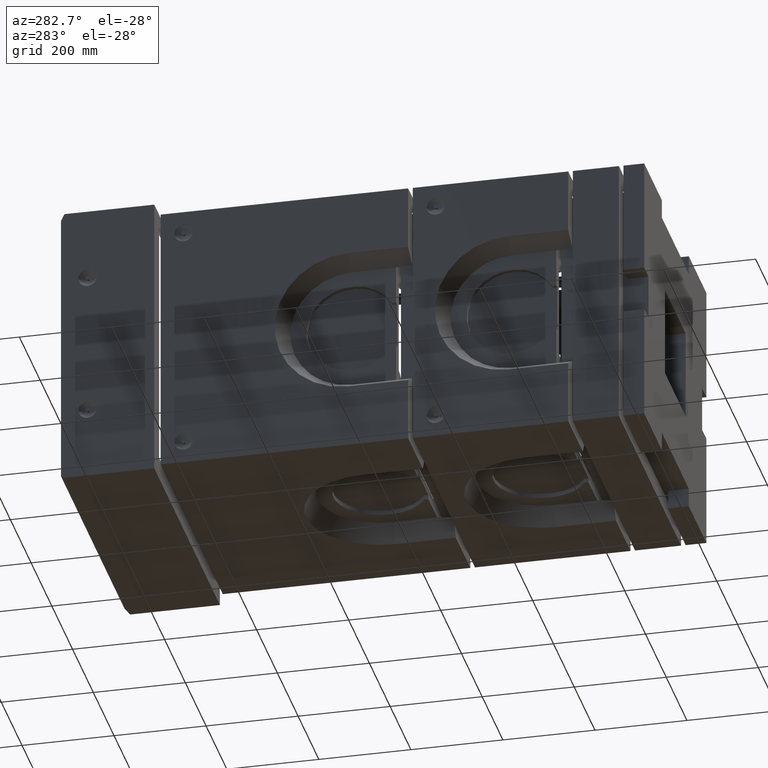
[diagram: clean part render]
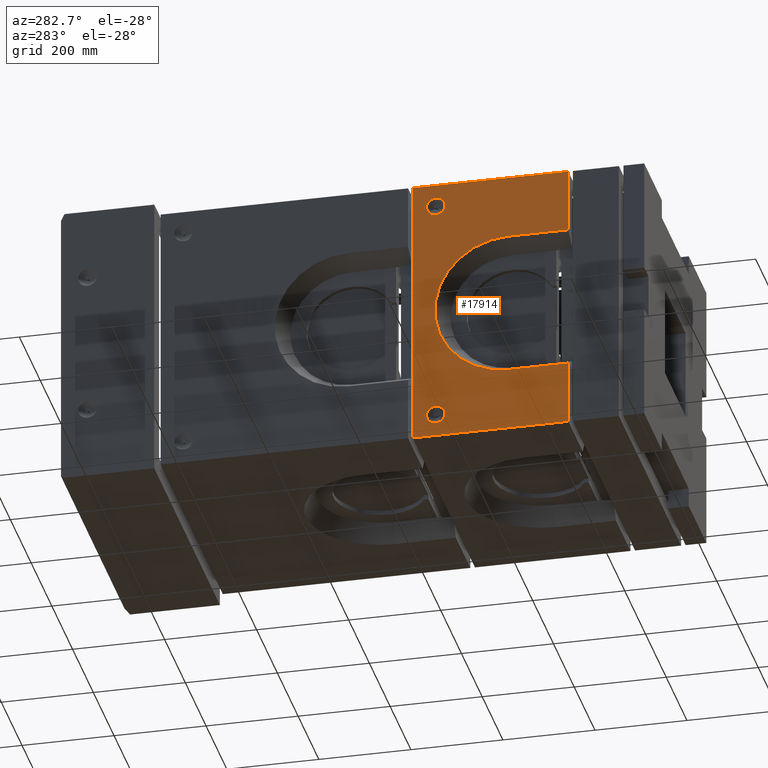
[diagram: same view with one face highlighted and labeled with its STEP entity id]
A machine part, auxiliary view. The second image highlights one B-rep face of the part: STEP entity #17914.
In plain terms, the highlighted planar face has unit normal (1, 0, 0).
Its self-contained STEP definition (entity closure, byte-faithful):
#1920 = VECTOR ( 'NONE', #21791, 1000.000000000000000 ) ;
#2865 = ORIENTED_EDGE ( 'NONE', *, *, #33384, .T. ) ;
#3267 = CARTESIAN_POINT ( 'NONE',  ( -300.0000000000000000, 502.9999999999995453, 300.0000000000000568 ) ) ;
#3295 = LINE ( 'NONE', #33744, #32811 ) ;
#5103 = DIRECTION ( 'NONE',  ( -0.0000000000000000000, -1.000000000000000000, 0.0000000000000000000 ) ) ;
#5372 = ORIENTED_EDGE ( 'NONE', *, *, #9721, .T. ) ;
#5799 = VERTEX_POINT ( 'NONE', #20026 ) ;
#5902 = EDGE_LOOP ( 'NONE', ( #17277 ) ) ;
#6622 = DIRECTION ( 'NONE',  ( 0.0000000000000000000, 0.0000000000000000000, 1.000000000000000000 ) ) ;
#6818 = VECTOR ( 'NONE', #27675, 1000.000000000000000 ) ;
#7474 = CIRCLE ( 'NONE', #26003, 20.00000000000001776 ) ;
#8334 = CIRCLE ( 'NONE', #9661, 159.9999999999999432 ) ;
#8595 = VERTEX_POINT ( 'NONE', #25867 ) ;
#8628 = EDGE_CURVE ( 'NONE', #5799, #28239, #13358, .T. ) ;
#9343 = VERTEX_POINT ( 'NONE', #30637 ) ;
#9394 = DIRECTION ( 'NONE',  ( 1.000000000000000000, 0.0000000000000000000, 0.0000000000000000000 ) ) ;
#9661 = AXIS2_PLACEMENT_3D ( 'NONE', #32703, #11723, #6622 ) ;
#9721 = EDGE_CURVE ( 'NONE', #5799, #28136, #14447, .T. ) ;
#9977 = CARTESIAN_POINT ( 'NONE',  ( -300.0000000000000000, 452.9999999999995453, -250.0000000000000000 ) ) ;
#10012 = DIRECTION ( 'NONE',  ( -0.0000000000000000000, -0.0000000000000000000, 1.000000000000000000 ) ) ;
#10184 = EDGE_CURVE ( 'NONE', #8595, #28136, #33393, .T. ) ;
#10448 = EDGE_LOOP ( 'NONE', ( #10464, #27659, #5372, #31668, #33625, #24411, #2865, #23178 ) ) ;
#10464 = ORIENTED_EDGE ( 'NONE', *, *, #28466, .F. ) ;
#10573 = DIRECTION ( 'NONE',  ( -0.0000000000000000000, -0.0000000000000000000, 1.000000000000000000 ) ) ;
#10583 = FACE_OUTER_BOUND ( 'NONE', #10448, .T. ) ;
#11019 = VERTEX_POINT ( 'NONE', #29344 ) ;
#11536 = CARTESIAN_POINT ( 'NONE',  ( -300.0000000000000000, 164.9999999999996021, 300.0000000000000568 ) ) ;
#11723 = DIRECTION ( 'NONE',  ( -1.000000000000000000, 0.0000000000000000000, 0.0000000000000000000 ) ) ;
#11861 = CARTESIAN_POINT ( 'NONE',  ( -300.0000000000000000, 294.9999999999996021, -159.9999999999999147 ) ) ;
#13358 = LINE ( 'NONE', #23228, #32252 ) ;
#13391 = AXIS2_PLACEMENT_3D ( 'NONE', #22096, #9394, #22543 ) ;
#13582 = AXIS2_PLACEMENT_3D ( 'NONE', #9977, #17725, #25758 ) ;
#14027 = CARTESIAN_POINT ( 'NONE',  ( -300.0000000000000000, 294.9999999999996021, -159.9999999999999147 ) ) ;
#14079 = DIRECTION ( 'NONE',  ( -0.0000000000000000000, -1.000000000000000000, 0.0000000000000000000 ) ) ;
#14447 = LINE ( 'NONE', #25438, #32961 ) ;
#14930 = CARTESIAN_POINT ( 'NONE',  ( -300.0000000000000000, 452.9999999999995453, -270.0000000000000000 ) ) ;
#15038 = VERTEX_POINT ( 'NONE', #14930 ) ;
#15495 = EDGE_CURVE ( 'NONE', #19718, #24094, #27678, .T. ) ;
#15543 = CARTESIAN_POINT ( 'NONE',  ( -300.0000000000000000, 164.9999999999996021, -159.9999999999999716 ) ) ;
#16612 = LINE ( 'NONE', #3267, #1920 ) ;
#17277 = ORIENTED_EDGE ( 'NONE', *, *, #21362, .T. ) ;
#17506 = FACE_BOUND ( 'NONE', #17999, .T. ) ;
#17725 = DIRECTION ( 'NONE',  ( 1.000000000000000000, 0.0000000000000000000, 0.0000000000000000000 ) ) ;
#17914 = ADVANCED_FACE ( 'NONE', ( #23667, #17506, #10583 ), #30331, .F. ) ;
#17999 = EDGE_LOOP ( 'NONE', ( #19633 ) ) ;
#18438 = CARTESIAN_POINT ( 'NONE',  ( -300.0000000000000000, 452.9999999999995453, 250.0000000000000000 ) ) ;
#18589 = VECTOR ( 'NONE', #14079, 1000.000000000000000 ) ;
#18720 = EDGE_CURVE ( 'NONE', #11019, #8595, #16612, .T. ) ;
#19633 = ORIENTED_EDGE ( 'NONE', *, *, #23310, .T. ) ;
#19718 = VERTEX_POINT ( 'NONE', #14027 ) ;
#19874 = VERTEX_POINT ( 'NONE', #22399 ) ;
#20026 = CARTESIAN_POINT ( 'NONE',  ( -300.0000000000000000, 164.9999999999996021, 159.9999999999999716 ) ) ;
#20829 = CIRCLE ( 'NONE', #13582, 20.00000000000001776 ) ;
#21362 = EDGE_CURVE ( 'NONE', #9343, #9343, #7474, .T. ) ;
#21791 = DIRECTION ( 'NONE',  ( 0.0000000000000000000, 0.0000000000000000000, 1.000000000000000000 ) ) ;
#22096 = CARTESIAN_POINT ( 'NONE',  ( -300.0000000000000000, 537.9999999999995453, 300.0000000000000568 ) ) ;
#22399 = CARTESIAN_POINT ( 'NONE',  ( -300.0000000000000000, 164.9999999999996021, -300.0000000000000000 ) ) ;
#22543 = DIRECTION ( 'NONE',  ( 0.0000000000000000000, 0.0000000000000000000, -1.000000000000000000 ) ) ;
#23085 = CARTESIAN_POINT ( 'NONE',  ( -300.0000000000000000, 294.9999999999996021, 159.9999999999999432 ) ) ;
#23178 = ORIENTED_EDGE ( 'NONE', *, *, #15495, .F. ) ;
#23228 = CARTESIAN_POINT ( 'NONE',  ( -300.0000000000000000, 294.9999999999996021, 159.9999999999999716 ) ) ;
#23310 = EDGE_CURVE ( 'NONE', #15038, #15038, #20829, .T. ) ;
#23667 = FACE_BOUND ( 'NONE', #5902, .T. ) ;
#24094 = VERTEX_POINT ( 'NONE', #15543 ) ;
#24411 = ORIENTED_EDGE ( 'NONE', *, *, #33426, .T. ) ;
#24503 = CARTESIAN_POINT ( 'NONE',  ( -300.0000000000000000, 537.9999999999995453, 300.0000000000000568 ) ) ;
#24982 = VECTOR ( 'NONE', #10573, 1000.000000000000000 ) ;
#25438 = CARTESIAN_POINT ( 'NONE',  ( -300.0000000000000000, 164.9999999999996021, 300.0000000000000568 ) ) ;
#25758 = DIRECTION ( 'NONE',  ( 0.0000000000000000000, 0.0000000000000000000, -1.000000000000000000 ) ) ;
#25867 = CARTESIAN_POINT ( 'NONE',  ( -300.0000000000000000, 502.9999999999995453, 300.0000000000000568 ) ) ;
#26003 = AXIS2_PLACEMENT_3D ( 'NONE', #18438, #29225, #28757 ) ;
#26258 = CARTESIAN_POINT ( 'NONE',  ( -300.0000000000000000, 164.9999999999996021, 300.0000000000000568 ) ) ;
#26641 = LINE ( 'NONE', #26258, #24982 ) ;
#27659 = ORIENTED_EDGE ( 'NONE', *, *, #8628, .F. ) ;
#27675 = DIRECTION ( 'NONE',  ( 0.0000000000000000000, -1.000000000000000000, -2.220446049250313574E-16 ) ) ;
#27678 = LINE ( 'NONE', #11861, #6818 ) ;
#28136 = VERTEX_POINT ( 'NONE', #11536 ) ;
#28239 = VERTEX_POINT ( 'NONE', #23085 ) ;
#28466 = EDGE_CURVE ( 'NONE', #28239, #19718, #8334, .T. ) ;
#28757 = DIRECTION ( 'NONE',  ( 0.0000000000000000000, 0.0000000000000000000, -1.000000000000000000 ) ) ;
#29225 = DIRECTION ( 'NONE',  ( 1.000000000000000000, 0.0000000000000000000, 0.0000000000000000000 ) ) ;
#29344 = CARTESIAN_POINT ( 'NONE',  ( -300.0000000000000000, 502.9999999999995453, -300.0000000000000000 ) ) ;
#30331 = PLANE ( 'NONE',  #13391 ) ;
#30637 = CARTESIAN_POINT ( 'NONE',  ( -300.0000000000000000, 452.9999999999995453, 229.9999999999999716 ) ) ;
#31367 = DIRECTION ( 'NONE',  ( 0.0000000000000000000, 1.000000000000000000, -1.110223024625156540E-16 ) ) ;
#31668 = ORIENTED_EDGE ( 'NONE', *, *, #10184, .F. ) ;
#32252 = VECTOR ( 'NONE', #31367, 1000.000000000000000 ) ;
#32703 = CARTESIAN_POINT ( 'NONE',  ( -300.0000000000000000, 294.9999999999996021, 0.0000000000000000000 ) ) ;
#32811 = VECTOR ( 'NONE', #5103, 1000.000000000000000 ) ;
#32961 = VECTOR ( 'NONE', #10012, 1000.000000000000000 ) ;
#33384 = EDGE_CURVE ( 'NONE', #19874, #24094, #26641, .T. ) ;
#33393 = LINE ( 'NONE', #24503, #18589 ) ;
#33426 = EDGE_CURVE ( 'NONE', #11019, #19874, #3295, .T. ) ;
#33625 = ORIENTED_EDGE ( 'NONE', *, *, #18720, .F. ) ;
#33744 = CARTESIAN_POINT ( 'NONE',  ( -300.0000000000000000, 537.9999999999995453, -300.0000000000000000 ) ) ;